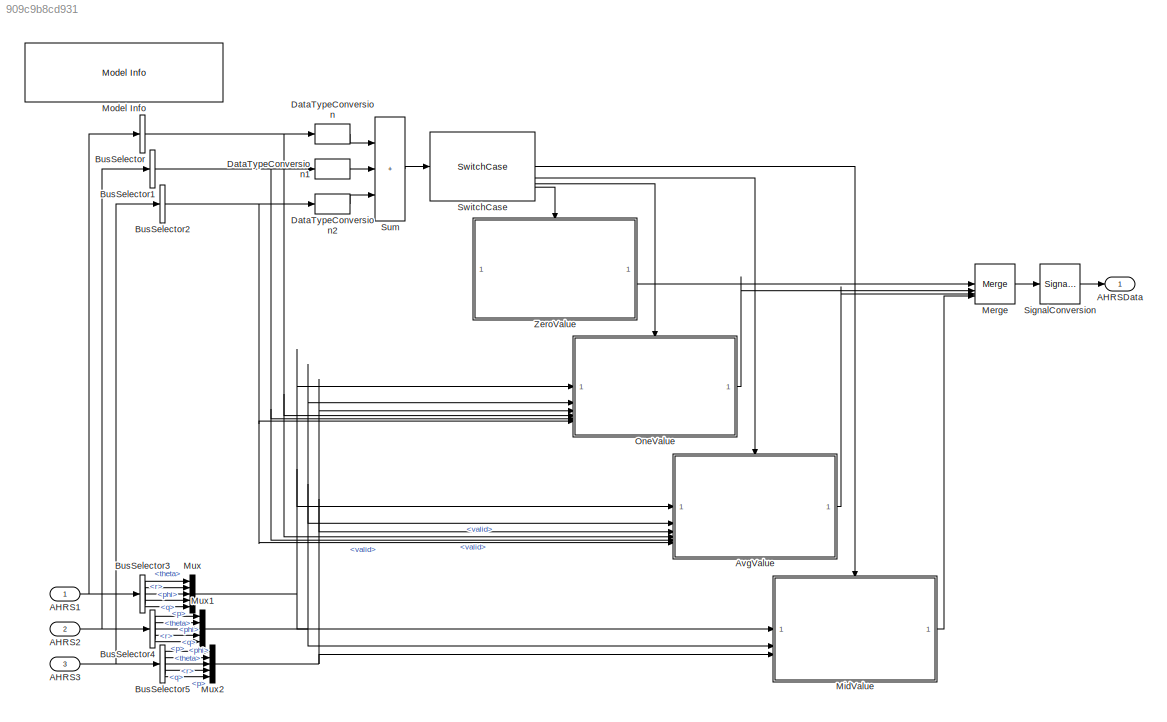
MODEL slx_909c9b8cd931
KIND model
CONFIG AbsTol = auto
CONFIG EnableMultiTasking = on
CONFIG FixedStep = auto
CONFIG MaxStep = auto
CONFIG MinStep = auto
CONFIG RelTol = 1e-3
CONFIG SampleTimeConstraint = Unconstrained
CONFIG SolverName = FixedStepDiscrete
CONFIG StartTime = 0.0
CONFIG StopTime = 10.0
BLOCK [Inport] AHRS1
  BusOutputAsStruct = on
  OutDataTypeStr = Bus: AHRS_Bus
  PortDimensions = 1
  SampleTime = 0.01
BLOCK [Inport] AHRS2
  BusOutputAsStruct = on
  OutDataTypeStr = Bus: AHRS_Bus
  Port = 2
  PortDimensions = 1
  SampleTime = 0.01
BLOCK [Inport] AHRS3
  BusOutputAsStruct = on
  OutDataTypeStr = Bus: AHRS_Bus
  Port = 3
  PortDimensions = 1
  SampleTime = 0.01
BLOCK [Outport] AHRSData
  OutDataTypeStr = double
  VectorParamsAs1DForOutWhenUnconnected = off
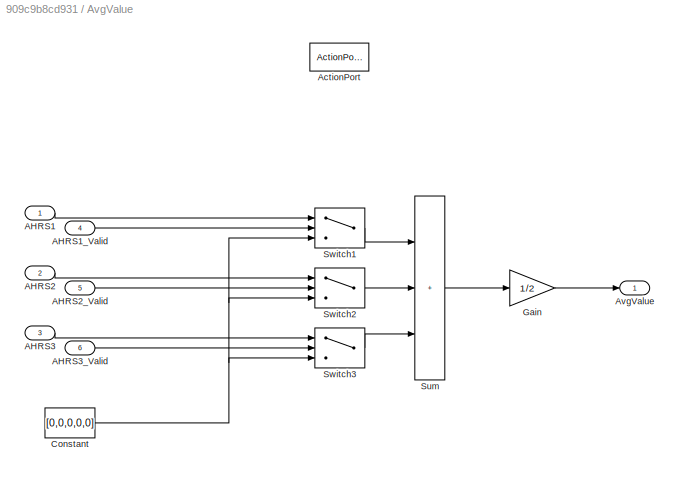
BLOCK [SubSystem] AvgValue
  RTWSystemCode = Inline
  TreatAsAtomicUnit = on
BLOCK [Inport] AvgValue/AHRS1
BLOCK [Inport] AvgValue/AHRS1_Valid
  OutDataTypeStr = boolean
  Port = 4
  PortDimensions = 1
BLOCK [Inport] AvgValue/AHRS2
  Port = 2
BLOCK [Inport] AvgValue/AHRS2_Valid
  OutDataTypeStr = boolean
  Port = 5
  PortDimensions = 1
BLOCK [Inport] AvgValue/AHRS3
  Port = 3
BLOCK [Inport] AvgValue/AHRS3_Valid
  OutDataTypeStr = boolean
  Port = 6
  PortDimensions = 1
BLOCK [ActionPort] AvgValue/ActionPort
  ActionPortLabel = case [ 2 ]:
BLOCK [Outport] AvgValue/AvgValue
  VectorParamsAs1DForOutWhenUnconnected = off
BLOCK [Constant] AvgValue/Constant
  Value = [0,0,0,0,0]
BLOCK [Gain] AvgValue/Gain
  Gain = 1/2
BLOCK [Sum] AvgValue/Sum
  IconShape = rectangular
  Inputs = +++
BLOCK [Switch] AvgValue/Switch1
  Criteria = u2 ~= 0
  InputSameDT = off
  SaturateOnIntegerOverflow = off
BLOCK [Switch] AvgValue/Switch2
  Criteria = u2 ~= 0
  InputSameDT = off
  SaturateOnIntegerOverflow = off
BLOCK [Switch] AvgValue/Switch3
  Criteria = u2 ~= 0
  InputSameDT = off
  SaturateOnIntegerOverflow = off
BLOCK [BusSelector] BusSelector
  OutputSignals = valid
BLOCK [BusSelector] BusSelector1
  OutputSignals = valid
BLOCK [BusSelector] BusSelector2
  OutputSignals = valid
BLOCK [BusSelector] BusSelector3
  OutputSignals = theta,phi,r,q,p
BLOCK [BusSelector] BusSelector4
  OutputSignals = theta,phi,r,q,p
BLOCK [BusSelector] BusSelector5
  OutputSignals = theta,phi,r,q,p
BLOCK [DataTypeConversion] DataTypeConversion
  OutDataTypeStr = int32
  RndMeth = Floor
  SaturateOnIntegerOverflow = off
BLOCK [DataTypeConversion] DataTypeConversion1
  OutDataTypeStr = int32
  RndMeth = Floor
  SaturateOnIntegerOverflow = off
BLOCK [DataTypeConversion] DataTypeConversion2
  OutDataTypeStr = int32
  RndMeth = Floor
  SaturateOnIntegerOverflow = off
BLOCK [Merge] Merge
  Inputs = 4
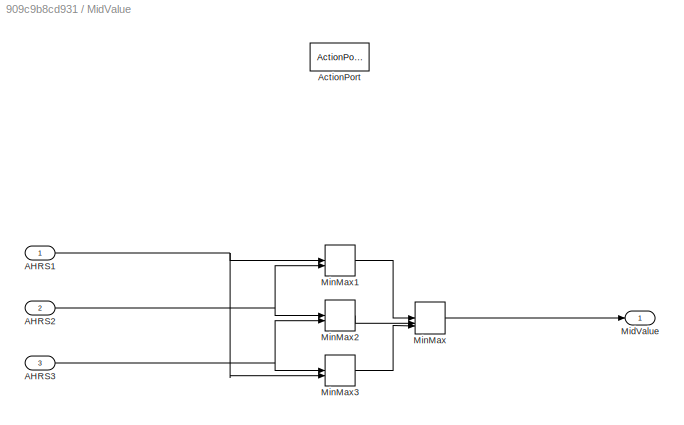
BLOCK [SubSystem] MidValue
  RTWSystemCode = Inline
  TreatAsAtomicUnit = on
BLOCK [Inport] MidValue/AHRS1
BLOCK [Inport] MidValue/AHRS2
  Port = 2
BLOCK [Inport] MidValue/AHRS3
  Port = 3
BLOCK [ActionPort] MidValue/ActionPort
  ActionPortLabel = case [ 3 ]:
BLOCK [Outport] MidValue/MidValue
  VectorParamsAs1DForOutWhenUnconnected = off
BLOCK [MinMax] MidValue/MinMax
  Function = max
  Inputs = 3
BLOCK [MinMax] MidValue/MinMax1
  Inputs = 2
BLOCK [MinMax] MidValue/MinMax2
  Inputs = 2
BLOCK [MinMax] MidValue/MinMax3
  Inputs = 2
BLOCK [Reference] Model Info  REF=simulink/Model-Wide
Utilities/Model Info
  SourceBlock = simulink/Model-Wide\nUtilities/Model Info
  SourceType = CMBlock
BLOCK [Mux] Mux
  DisplayOption = bar
  Inputs = 5
BLOCK [Mux] Mux1
  DisplayOption = bar
  Inputs = 5
BLOCK [Mux] Mux2
  DisplayOption = bar
  Inputs = 5
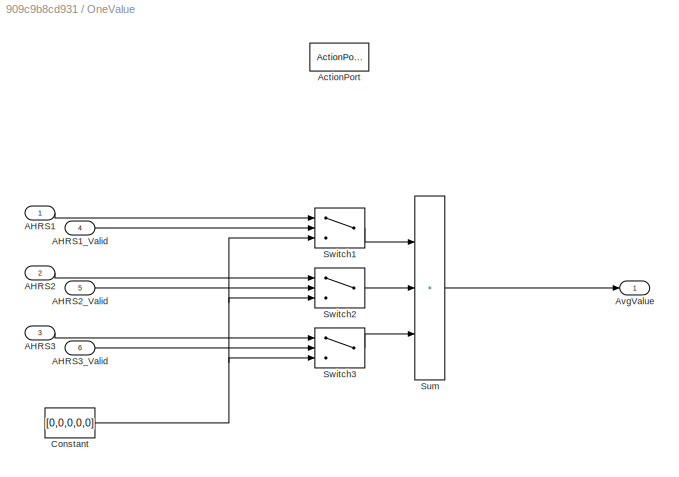
BLOCK [SubSystem] OneValue
  RTWSystemCode = Inline
  TreatAsAtomicUnit = on
BLOCK [Inport] OneValue/AHRS1
BLOCK [Inport] OneValue/AHRS1_Valid
  OutDataTypeStr = boolean
  Port = 4
  PortDimensions = 1
BLOCK [Inport] OneValue/AHRS2
  Port = 2
BLOCK [Inport] OneValue/AHRS2_Valid
  OutDataTypeStr = boolean
  Port = 5
  PortDimensions = 1
BLOCK [Inport] OneValue/AHRS3
  Port = 3
BLOCK [Inport] OneValue/AHRS3_Valid
  OutDataTypeStr = boolean
  Port = 6
  PortDimensions = 1
BLOCK [ActionPort] OneValue/ActionPort
  ActionPortLabel = case [ 1 ]:
BLOCK [Outport] OneValue/AvgValue
  VectorParamsAs1DForOutWhenUnconnected = off
BLOCK [Constant] OneValue/Constant
  Value = [0,0,0,0,0]
BLOCK [Sum] OneValue/Sum
  IconShape = rectangular
  Inputs = +++
BLOCK [Switch] OneValue/Switch1
  Criteria = u2 ~= 0
  InputSameDT = off
  SaturateOnIntegerOverflow = off
BLOCK [Switch] OneValue/Switch2
  Criteria = u2 ~= 0
  InputSameDT = off
  SaturateOnIntegerOverflow = off
BLOCK [Switch] OneValue/Switch3
  Criteria = u2 ~= 0
  InputSameDT = off
  SaturateOnIntegerOverflow = off
BLOCK [SignalConversion] SignalConversion
  OverrideOpt = on
BLOCK [Sum] Sum
  AccumDataTypeStr = Inherit: Same as first input
  IconShape = rectangular
  Inputs = +++
  OutDataTypeStr = int32
BLOCK [SwitchCase] SwitchCase
  CaseConditions = {3, 2, 1}
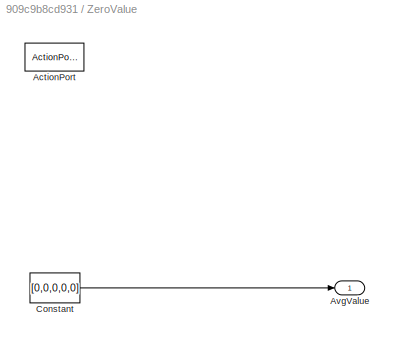
BLOCK [SubSystem] ZeroValue
  RTWSystemCode = Inline
  TreatAsAtomicUnit = on
BLOCK [ActionPort] ZeroValue/ActionPort
  ActionPortLabel = default:
BLOCK [Outport] ZeroValue/AvgValue
  VectorParamsAs1DForOutWhenUnconnected = off
BLOCK [Constant] ZeroValue/Constant
  SampleTime = -1
  Value = [0,0,0,0,0]
NET AHRS1:1 -> BusSelector3:1, BusSelector:1
NET AHRS2:1 -> BusSelector1:1, BusSelector4:1
NET AHRS3:1 -> BusSelector2:1, BusSelector5:1
LINE AvgValue/AHRS1:1 -> AvgValue/Switch1:1
LINE AvgValue/AHRS1_Valid:1 -> AvgValue/Switch1:2
LINE AvgValue/AHRS2:1 -> AvgValue/Switch2:1
LINE AvgValue/AHRS2_Valid:1 -> AvgValue/Switch2:2
LINE AvgValue/AHRS3:1 -> AvgValue/Switch3:1
LINE AvgValue/AHRS3_Valid:1 -> AvgValue/Switch3:2
NET AvgValue/Constant:1 -> AvgValue/Switch1:3, AvgValue/Switch2:3, AvgValue/Switch3:3
LINE AvgValue/Gain:1 -> AvgValue/AvgValue:1
LINE AvgValue/Sum:1 -> AvgValue/Gain:1
LINE AvgValue/Switch1:1 -> AvgValue/Sum:1
LINE AvgValue/Switch2:1 -> AvgValue/Sum:2
LINE AvgValue/Switch3:1 -> AvgValue/Sum:3
LINE AvgValue:1 -> Merge:3
NET BusSelector1:1 -> AvgValue:5, DataTypeConversion1:1, OneValue:5
NET BusSelector2:1 -> AvgValue:6, DataTypeConversion2:1, OneValue:6
LINE BusSelector3:1 -> Mux:1
LINE BusSelector3:2 -> Mux:2
LINE BusSelector3:3 -> Mux:3
LINE BusSelector3:4 -> Mux:4
LINE BusSelector3:5 -> Mux:5
LINE BusSelector4:1 -> Mux1:1
LINE BusSelector4:2 -> Mux1:2
LINE BusSelector4:3 -> Mux1:3
LINE BusSelector4:4 -> Mux1:4
LINE BusSelector4:5 -> Mux1:5
LINE BusSelector5:1 -> Mux2:1
LINE BusSelector5:2 -> Mux2:2
LINE BusSelector5:3 -> Mux2:3
LINE BusSelector5:4 -> Mux2:4
LINE BusSelector5:5 -> Mux2:5
NET BusSelector:1 -> AvgValue:4, DataTypeConversion:1, OneValue:4
LINE DataTypeConversion1:1 -> Sum:2
LINE DataTypeConversion2:1 -> Sum:3
LINE DataTypeConversion:1 -> Sum:1
LINE Merge:1 -> SignalConversion:1
NET MidValue/AHRS1:1 -> MidValue/MinMax1:1, MidValue/MinMax3:2
NET MidValue/AHRS2:1 -> MidValue/MinMax1:2, MidValue/MinMax2:1
NET MidValue/AHRS3:1 -> MidValue/MinMax2:2, MidValue/MinMax3:1
LINE MidValue/MinMax1:1 -> MidValue/MinMax:1
LINE MidValue/MinMax2:1 -> MidValue/MinMax:2
LINE MidValue/MinMax3:1 -> MidValue/MinMax:3
LINE MidValue/MinMax:1 -> MidValue/MidValue:1
LINE MidValue:1 -> Merge:4
NET Mux1:1 -> AvgValue:2, MidValue:2, OneValue:2
NET Mux2:1 -> AvgValue:3, MidValue:3, OneValue:3
NET Mux:1 -> AvgValue:1, MidValue:1, OneValue:1
LINE OneValue/AHRS1:1 -> OneValue/Switch1:1
LINE OneValue/AHRS1_Valid:1 -> OneValue/Switch1:2
LINE OneValue/AHRS2:1 -> OneValue/Switch2:1
LINE OneValue/AHRS2_Valid:1 -> OneValue/Switch2:2
LINE OneValue/AHRS3:1 -> OneValue/Switch3:1
LINE OneValue/AHRS3_Valid:1 -> OneValue/Switch3:2
NET OneValue/Constant:1 -> OneValue/Switch1:3, OneValue/Switch2:3, OneValue/Switch3:3
LINE OneValue/Sum:1 -> OneValue/AvgValue:1
LINE OneValue/Switch1:1 -> OneValue/Sum:1
LINE OneValue/Switch2:1 -> OneValue/Sum:2
LINE OneValue/Switch3:1 -> OneValue/Sum:3
LINE OneValue:1 -> Merge:2
LINE SignalConversion:1 -> AHRSData:1
LINE Sum:1 -> SwitchCase:1
LINE SwitchCase:1 -> MidValue:ifaction
LINE SwitchCase:2 -> AvgValue:ifaction
LINE SwitchCase:3 -> OneValue:ifaction
LINE SwitchCase:4 -> ZeroValue:ifaction
LINE ZeroValue/Constant:1 -> ZeroValue/AvgValue:1
LINE ZeroValue:1 -> Merge:1
note: NET lines group one-source signal fan-out (src -> all destinations, sorted); 1:1 wires keep LINE
